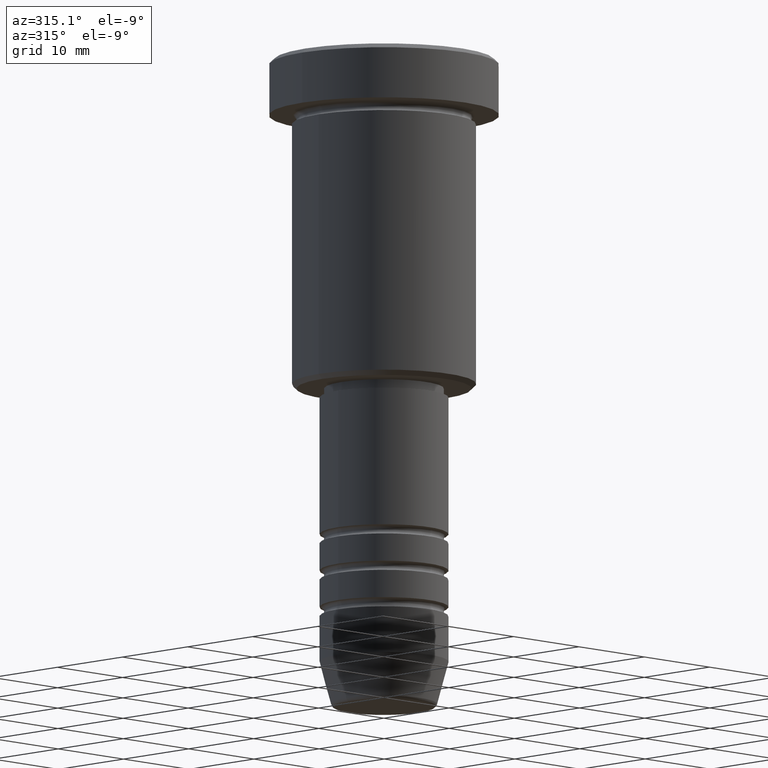
[diagram: clean part render]
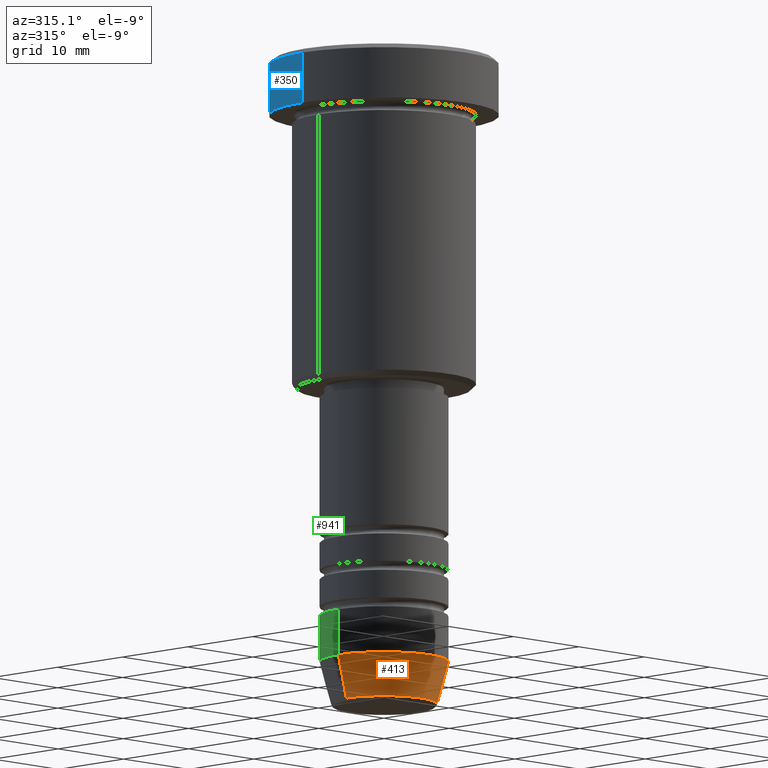
[diagram: same view with three faces highlighted in distinct colors, each labeled with its STEP entity id]
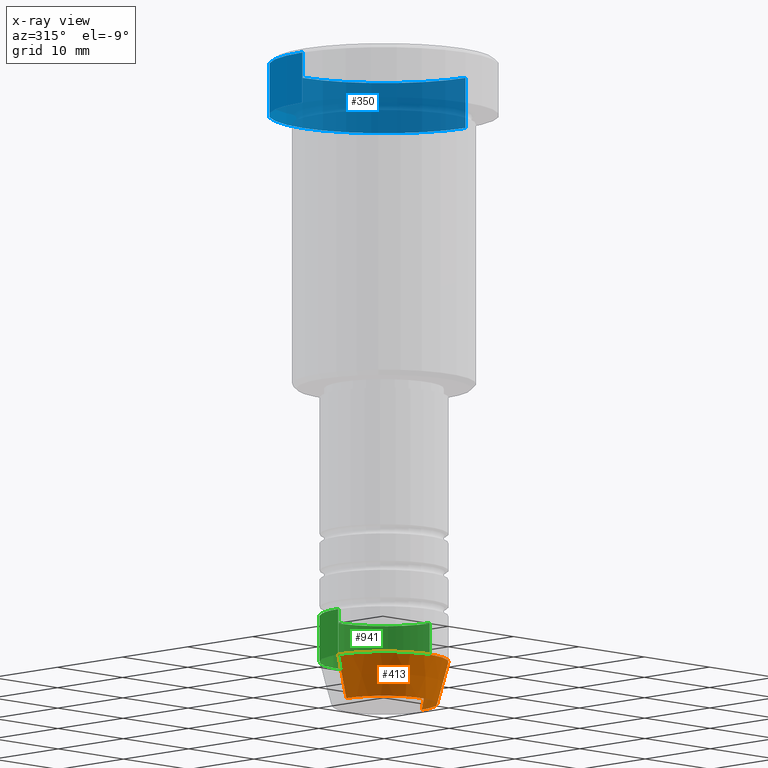
[diagram: x-ray of the same camera — body ghosted, the three highlighted faces saturated]
A machine part, auxiliary view with three faces highlighted in distinct colors.
The next image is the same camera in x-ray (body ghosted, the three faces saturated) — at least one of them is partly hidden behind the body in this view.
Their STEP definitions:

[orange] entity #413 — the highlighted conical surface has half-angle 15 deg.
#12 = VERTEX_POINT ( 'NONE', #567 ) ;
#39 = ORIENTED_EDGE ( 'NONE', *, *, #531, .T. ) ;
#50 = CARTESIAN_POINT ( 'NONE',  ( -7.000000000000000000, 8.572527594031473190E-16, -66.00000000000000000 ) ) ;
#52 = CARTESIAN_POINT ( 'NONE',  ( 7.000000000000000000, 0.000000000000000000, -66.00000000000000000 ) ) ;
#56 = CARTESIAN_POINT ( 'NONE',  ( -7.000000000000000000, 8.572527594031473190E-16, -66.00000000000000000 ) ) ;
#72 = ORIENTED_EDGE ( 'NONE', *, *, #1099, .F. ) ;
#97 = DIRECTION ( 'NONE',  ( -0.000000000000000000, -0.000000000000000000, 1.000000000000000000 ) ) ;
#144 = CONICAL_SURFACE ( 'NONE', #476, 7.000000000000000000, 0.2617993877991500740 ) ;
#145 = VECTOR ( 'NONE', #348, 1000.000000000000000 ) ;
#146 = CARTESIAN_POINT ( 'NONE',  ( -5.759553456999433330, 7.812973149831950787E-16, -70.62940952255127058 ) ) ;
#167 = VERTEX_POINT ( 'NONE', #56 ) ;
#201 = ORIENTED_EDGE ( 'NONE', *, *, #232, .F. ) ;
#221 = CIRCLE ( 'NONE', #320, 5.759553456999433330 ) ;
#232 = EDGE_CURVE ( 'NONE', #808, #167, #1130, .T. ) ;
#320 = AXIS2_PLACEMENT_3D ( 'NONE', #384, #97, #670 ) ;
#327 = EDGE_LOOP ( 'NONE', ( #201, #39, #798, #72 ) ) ;
#347 = CARTESIAN_POINT ( 'NONE',  ( 0.000000000000000000, 0.000000000000000000, -66.00000000000000000 ) ) ;
#348 = DIRECTION ( 'NONE',  ( 0.2588190451025213501, 0.000000000000000000, 0.9659258262890680902 ) ) ;
#363 = DIRECTION ( 'NONE',  ( -0.000000000000000000, -0.000000000000000000, 1.000000000000000000 ) ) ;
#384 = CARTESIAN_POINT ( 'NONE',  ( 0.000000000000000000, 0.000000000000000000, -70.62940952255127058 ) ) ;
#413 = ADVANCED_FACE ( 'NONE', ( #453 ), #144, .T. ) ;
#453 = FACE_OUTER_BOUND ( 'NONE', #327, .T. ) ;
#476 = AXIS2_PLACEMENT_3D ( 'NONE', #1069, #363, #1074 ) ;
#531 = EDGE_CURVE ( 'NONE', #808, #12, #221, .T. ) ;
#564 = CARTESIAN_POINT ( 'NONE',  ( 7.000000000000000000, 0.000000000000000000, -66.00000000000000000 ) ) ;
#567 = CARTESIAN_POINT ( 'NONE',  ( 5.759553456999433330, 0.000000000000000000, -70.62940952255127058 ) ) ;
#663 = VECTOR ( 'NONE', #860, 1000.000000000000000 ) ;
#670 = DIRECTION ( 'NONE',  ( 1.000000000000000000, 0.000000000000000000, 0.000000000000000000 ) ) ;
#710 = DIRECTION ( 'NONE',  ( -0.000000000000000000, -0.000000000000000000, 1.000000000000000000 ) ) ;
#798 = ORIENTED_EDGE ( 'NONE', *, *, #899, .T. ) ;
#808 = VERTEX_POINT ( 'NONE', #146 ) ;
#860 = DIRECTION ( 'NONE',  ( -0.2588190451025213501, 3.169619151431772337E-17, 0.9659258262890680902 ) ) ;
#866 = LINE ( 'NONE', #52, #145 ) ;
#899 = EDGE_CURVE ( 'NONE', #12, #1145, #866, .T. ) ;
#994 = DIRECTION ( 'NONE',  ( 1.000000000000000000, 0.000000000000000000, 0.000000000000000000 ) ) ;
#1050 = AXIS2_PLACEMENT_3D ( 'NONE', #347, #710, #994 ) ;
#1069 = CARTESIAN_POINT ( 'NONE',  ( 0.000000000000000000, 0.000000000000000000, -66.00000000000000000 ) ) ;
#1074 = DIRECTION ( 'NONE',  ( 1.000000000000000000, 0.000000000000000000, 0.000000000000000000 ) ) ;
#1081 = CIRCLE ( 'NONE', #1050, 7.000000000000000000 ) ;
#1099 = EDGE_CURVE ( 'NONE', #167, #1145, #1081, .T. ) ;
#1130 = LINE ( 'NONE', #50, #663 ) ;
#1145 = VERTEX_POINT ( 'NONE', #564 ) ;

[blue] entity #350 — the highlighted cylindrical surface (partial cylindrical patch) has radius 12.5 mm, axis along (-0, -0, 1).
#15 = AXIS2_PLACEMENT_3D ( 'NONE', #551, #79, #896 ) ;
#79 = DIRECTION ( 'NONE',  ( -0.000000000000000000, -0.000000000000000000, 1.000000000000000000 ) ) ;
#130 = CARTESIAN_POINT ( 'NONE',  ( 12.50000000000000000, 0.000000000000000000, -0.5000000000000126565 ) ) ;
#135 = CARTESIAN_POINT ( 'NONE',  ( 12.50000000000000000, 0.000000000000000000, 0.000000000000000000 ) ) ;
#143 = DIRECTION ( 'NONE',  ( 1.000000000000000000, 0.000000000000000000, 0.000000000000000000 ) ) ;
#165 = VECTOR ( 'NONE', #332, 1000.000000000000000 ) ;
#185 = EDGE_CURVE ( 'NONE', #960, #864, #1005, .T. ) ;
#234 = DIRECTION ( 'NONE',  ( 1.000000000000000000, 0.000000000000000000, 0.000000000000000000 ) ) ;
#284 = EDGE_CURVE ( 'NONE', #417, #631, #848, .T. ) ;
#314 = ORIENTED_EDGE ( 'NONE', *, *, #796, .F. ) ;
#332 = DIRECTION ( 'NONE',  ( -0.000000000000000000, -0.000000000000000000, 1.000000000000000000 ) ) ;
#350 = ADVANCED_FACE ( 'NONE', ( #880 ), #538, .T. ) ;
#358 = VECTOR ( 'NONE', #823, 1000.000000000000000 ) ;
#410 = LINE ( 'NONE', #135, #165 ) ;
#417 = VERTEX_POINT ( 'NONE', #794 ) ;
#488 = ORIENTED_EDGE ( 'NONE', *, *, #185, .T. ) ;
#525 = DIRECTION ( 'NONE',  ( 0.000000000000000000, 0.000000000000000000, -1.000000000000000000 ) ) ;
#538 = CYLINDRICAL_SURFACE ( 'NONE', #15, 12.50000000000000000 ) ;
#542 = CARTESIAN_POINT ( 'NONE',  ( -12.50000000000000000, 1.530808498934191521E-15, -0.5000000000000126565 ) ) ;
#551 = CARTESIAN_POINT ( 'NONE',  ( 0.000000000000000000, 0.000000000000000000, 0.000000000000000000 ) ) ;
#566 = CARTESIAN_POINT ( 'NONE',  ( -12.50000000000000000, 1.530808498934191521E-15, 0.000000000000000000 ) ) ;
#608 = AXIS2_PLACEMENT_3D ( 'NONE', #865, #1056, #143 ) ;
#630 = EDGE_CURVE ( 'NONE', #631, #960, #845, .T. ) ;
#631 = VERTEX_POINT ( 'NONE', #658 ) ;
#658 = CARTESIAN_POINT ( 'NONE',  ( -12.50000000000000000, 1.530808498934191521E-15, -5.999999999999996447 ) ) ;
#696 = CARTESIAN_POINT ( 'NONE',  ( 0.000000000000000000, 0.000000000000000000, -0.5000000000000126565 ) ) ;
#794 = CARTESIAN_POINT ( 'NONE',  ( 12.50000000000000000, 0.000000000000000000, -5.999999999999996447 ) ) ;
#796 = EDGE_CURVE ( 'NONE', #417, #864, #410, .T. ) ;
#823 = DIRECTION ( 'NONE',  ( -0.000000000000000000, -0.000000000000000000, 1.000000000000000000 ) ) ;
#845 = LINE ( 'NONE', #566, #358 ) ;
#848 = CIRCLE ( 'NONE', #608, 12.50000000000000000 ) ;
#858 = EDGE_LOOP ( 'NONE', ( #1048, #1041, #488, #314 ) ) ;
#864 = VERTEX_POINT ( 'NONE', #130 ) ;
#865 = CARTESIAN_POINT ( 'NONE',  ( 0.000000000000000000, 0.000000000000000000, -5.999999999999996447 ) ) ;
#880 = FACE_OUTER_BOUND ( 'NONE', #858, .T. ) ;
#884 = AXIS2_PLACEMENT_3D ( 'NONE', #696, #525, #234 ) ;
#896 = DIRECTION ( 'NONE',  ( 1.000000000000000000, 0.000000000000000000, 0.000000000000000000 ) ) ;
#960 = VERTEX_POINT ( 'NONE', #542 ) ;
#1005 = CIRCLE ( 'NONE', #884, 12.50000000000000000 ) ;
#1041 = ORIENTED_EDGE ( 'NONE', *, *, #630, .T. ) ;
#1048 = ORIENTED_EDGE ( 'NONE', *, *, #284, .T. ) ;
#1056 = DIRECTION ( 'NONE',  ( -0.000000000000000000, -0.000000000000000000, 1.000000000000000000 ) ) ;

[green] entity #941 — the highlighted cylindrical surface (partial cylindrical patch) has radius 7 mm, axis along (-0, -0, 1).
#26 = LINE ( 'NONE', #467, #142 ) ;
#56 = CARTESIAN_POINT ( 'NONE',  ( -7.000000000000000000, 8.572527594031473190E-16, -66.00000000000000000 ) ) ;
#66 = DIRECTION ( 'NONE',  ( 1.000000000000000000, 0.000000000000000000, 0.000000000000000000 ) ) ;
#73 = DIRECTION ( 'NONE',  ( -0.000000000000000000, -0.000000000000000000, 1.000000000000000000 ) ) ;
#75 = DIRECTION ( 'NONE',  ( -0.000000000000000000, -0.000000000000000000, 1.000000000000000000 ) ) ;
#83 = DIRECTION ( 'NONE',  ( -0.000000000000000000, -0.000000000000000000, 1.000000000000000000 ) ) ;
#99 = EDGE_CURVE ( 'NONE', #167, #937, #26, .T. ) ;
#142 = VECTOR ( 'NONE', #662, 1000.000000000000000 ) ;
#167 = VERTEX_POINT ( 'NONE', #56 ) ;
#178 = CARTESIAN_POINT ( 'NONE',  ( 0.000000000000000000, 0.000000000000000000, -66.00000000000000000 ) ) ;
#249 = CARTESIAN_POINT ( 'NONE',  ( 0.000000000000000000, 0.000000000000000000, 0.000000000000000000 ) ) ;
#259 = CARTESIAN_POINT ( 'NONE',  ( -7.000000000000000000, 8.572527594031473190E-16, -61.00000000000000711 ) ) ;
#362 = VERTEX_POINT ( 'NONE', #901 ) ;
#396 = EDGE_CURVE ( 'NONE', #1145, #362, #449, .T. ) ;
#405 = EDGE_CURVE ( 'NONE', #362, #937, #930, .T. ) ;
#439 = CIRCLE ( 'NONE', #1079, 7.000000000000000000 ) ;
#449 = LINE ( 'NONE', #789, #517 ) ;
#467 = CARTESIAN_POINT ( 'NONE',  ( -7.000000000000000000, 8.572527594031473190E-16, 0.000000000000000000 ) ) ;
#517 = VECTOR ( 'NONE', #73, 1000.000000000000000 ) ;
#556 = CYLINDRICAL_SURFACE ( 'NONE', #742, 7.000000000000000000 ) ;
#564 = CARTESIAN_POINT ( 'NONE',  ( 7.000000000000000000, 0.000000000000000000, -66.00000000000000000 ) ) ;
#606 = ORIENTED_EDGE ( 'NONE', *, *, #396, .F. ) ;
#626 = AXIS2_PLACEMENT_3D ( 'NONE', #1002, #83, #978 ) ;
#634 = DIRECTION ( 'NONE',  ( -0.000000000000000000, -0.000000000000000000, 1.000000000000000000 ) ) ;
#662 = DIRECTION ( 'NONE',  ( -0.000000000000000000, -0.000000000000000000, 1.000000000000000000 ) ) ;
#742 = AXIS2_PLACEMENT_3D ( 'NONE', #249, #75, #66 ) ;
#771 = ORIENTED_EDGE ( 'NONE', *, *, #99, .T. ) ;
#789 = CARTESIAN_POINT ( 'NONE',  ( 7.000000000000000000, 0.000000000000000000, 0.000000000000000000 ) ) ;
#901 = CARTESIAN_POINT ( 'NONE',  ( 7.000000000000000000, 0.000000000000000000, -61.00000000000000711 ) ) ;
#903 = FACE_OUTER_BOUND ( 'NONE', #1121, .T. ) ;
#919 = EDGE_CURVE ( 'NONE', #1145, #167, #439, .T. ) ;
#930 = CIRCLE ( 'NONE', #626, 7.000000000000000000 ) ;
#937 = VERTEX_POINT ( 'NONE', #259 ) ;
#940 = ORIENTED_EDGE ( 'NONE', *, *, #405, .F. ) ;
#941 = ADVANCED_FACE ( 'NONE', ( #903 ), #556, .T. ) ;
#978 = DIRECTION ( 'NONE',  ( 1.000000000000000000, 0.000000000000000000, 0.000000000000000000 ) ) ;
#1002 = CARTESIAN_POINT ( 'NONE',  ( 0.000000000000000000, 0.000000000000000000, -61.00000000000000711 ) ) ;
#1068 = ORIENTED_EDGE ( 'NONE', *, *, #919, .T. ) ;
#1079 = AXIS2_PLACEMENT_3D ( 'NONE', #178, #634, #1175 ) ;
#1121 = EDGE_LOOP ( 'NONE', ( #1068, #771, #940, #606 ) ) ;
#1145 = VERTEX_POINT ( 'NONE', #564 ) ;
#1175 = DIRECTION ( 'NONE',  ( 1.000000000000000000, 0.000000000000000000, 0.000000000000000000 ) ) ;